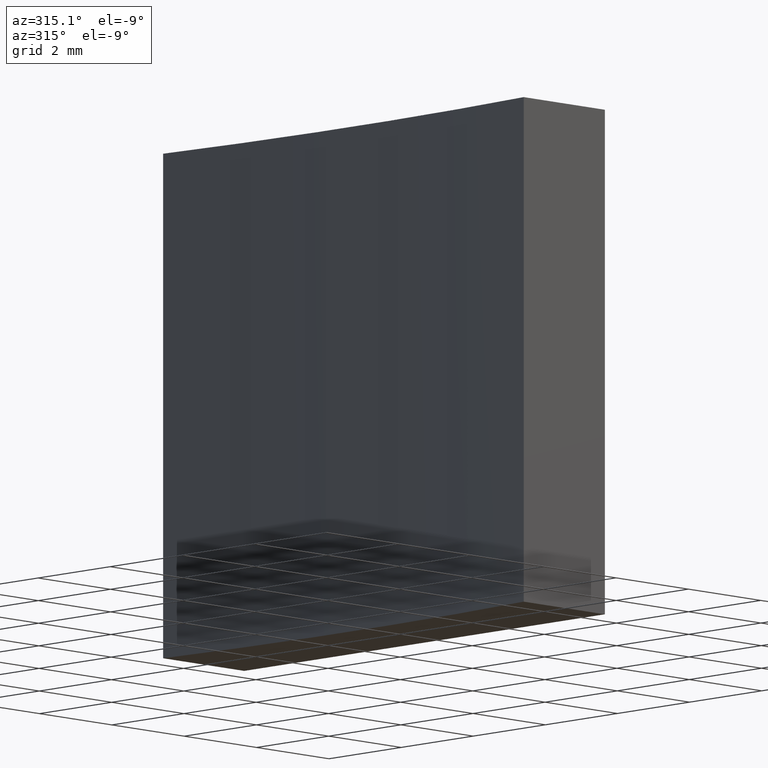
[diagram: clean part render]
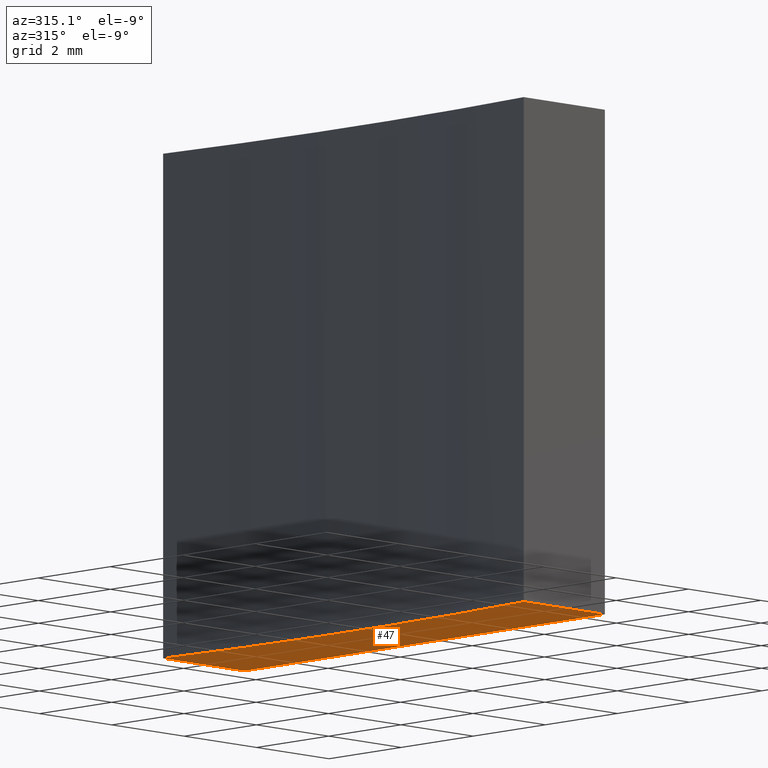
[diagram: same view with one face highlighted and labeled with its STEP entity id]
A machine part, auxiliary view. The second image highlights one B-rep face of the part: STEP entity #47.
In plain terms, the highlighted planar face has unit normal (0, 0, 1).
Its self-contained STEP definition (entity closure, byte-faithful):
#10 = FACE_OUTER_BOUND ( 'NONE', #34, .T. ) ;
#23 = AXIS2_PLACEMENT_3D ( 'NONE', #191, #228, #31 ) ;
#31 = DIRECTION ( 'NONE',  ( 1.000000000000000000, 0.000000000000000000, 0.000000000000000000 ) ) ;
#33 = CARTESIAN_POINT ( 'NONE',  ( 19.78284995870107466, -9.651690268478269275, 0.000000000000000000 ) ) ;
#34 = EDGE_LOOP ( 'NONE', ( #207, #87, #37, #210 ) ) ;
#36 = AXIS2_PLACEMENT_3D ( 'NONE', #169, #137, #213 ) ;
#37 = ORIENTED_EDGE ( 'NONE', *, *, #39, .F. ) ;
#39 = EDGE_CURVE ( 'NONE', #102, #157, #135, .T. ) ;
#47 = ADVANCED_FACE ( 'NONE', ( #10 ), #71, .F. ) ;
#52 = DIRECTION ( 'NONE',  ( -1.000000000000000000, -7.744301232039333445E-16, -0.000000000000000000 ) ) ;
#56 = DIRECTION ( 'NONE',  ( 1.000000000000000000, 0.000000000000000000, 0.000000000000000000 ) ) ;
#71 = PLANE ( 'NONE',  #36 ) ;
#83 = CARTESIAN_POINT ( 'NONE',  ( 19.78284995870107466, -19.65169026847826927, 0.000000000000000000 ) ) ;
#87 = ORIENTED_EDGE ( 'NONE', *, *, #121, .F. ) ;
#94 = CIRCLE ( 'NONE', #23, 51.64000000000000057 ) ;
#99 = EDGE_CURVE ( 'NONE', #133, #102, #153, .T. ) ;
#101 = CARTESIAN_POINT ( 'NONE',  ( 22.02284995870106954, -9.651690268478267498, 0.000000000000000000 ) ) ;
#102 = VERTEX_POINT ( 'NONE', #187 ) ;
#114 = CARTESIAN_POINT ( 'NONE',  ( 22.02284995870106954, -9.651690268478267498, 0.000000000000000000 ) ) ;
#116 = CARTESIAN_POINT ( 'NONE',  ( 19.78284995870107466, -19.65169026847826927, 0.000000000000000000 ) ) ;
#121 = EDGE_CURVE ( 'NONE', #157, #215, #206, .T. ) ;
#131 = CARTESIAN_POINT ( 'NONE',  ( 19.78284995870107466, -9.651690268478269275, 0.000000000000000000 ) ) ;
#132 = VECTOR ( 'NONE', #136, 1000.000000000000000 ) ;
#133 = VERTEX_POINT ( 'NONE', #116 ) ;
#135 = LINE ( 'NONE', #114, #132 ) ;
#136 = DIRECTION ( 'NONE',  ( -3.469446951953613696E-16, 1.000000000000000000, -0.000000000000000000 ) ) ;
#137 = DIRECTION ( 'NONE',  ( 0.000000000000000000, 0.000000000000000000, 1.000000000000000000 ) ) ;
#143 = EDGE_CURVE ( 'NONE', #215, #133, #94, .T. ) ;
#153 = LINE ( 'NONE', #83, #202 ) ;
#157 = VERTEX_POINT ( 'NONE', #101 ) ;
#169 = CARTESIAN_POINT ( 'NONE',  ( -31.61451962379798530, -14.65169026847826927, 0.000000000000000000 ) ) ;
#187 = CARTESIAN_POINT ( 'NONE',  ( 22.02284995870107309, -19.65169026847826927, 0.000000000000000000 ) ) ;
#191 = CARTESIAN_POINT ( 'NONE',  ( -31.61451962379798530, -14.65169026847826927, 0.000000000000000000 ) ) ;
#193 = VECTOR ( 'NONE', #52, 1000.000000000000000 ) ;
#202 = VECTOR ( 'NONE', #56, 1000.000000000000000 ) ;
#206 = LINE ( 'NONE', #33, #193 ) ;
#207 = ORIENTED_EDGE ( 'NONE', *, *, #143, .F. ) ;
#210 = ORIENTED_EDGE ( 'NONE', *, *, #99, .F. ) ;
#213 = DIRECTION ( 'NONE',  ( 1.000000000000000000, 0.000000000000000000, -0.000000000000000000 ) ) ;
#215 = VERTEX_POINT ( 'NONE', #131 ) ;
#228 = DIRECTION ( 'NONE',  ( -0.000000000000000000, -0.000000000000000000, -1.000000000000000000 ) ) ;